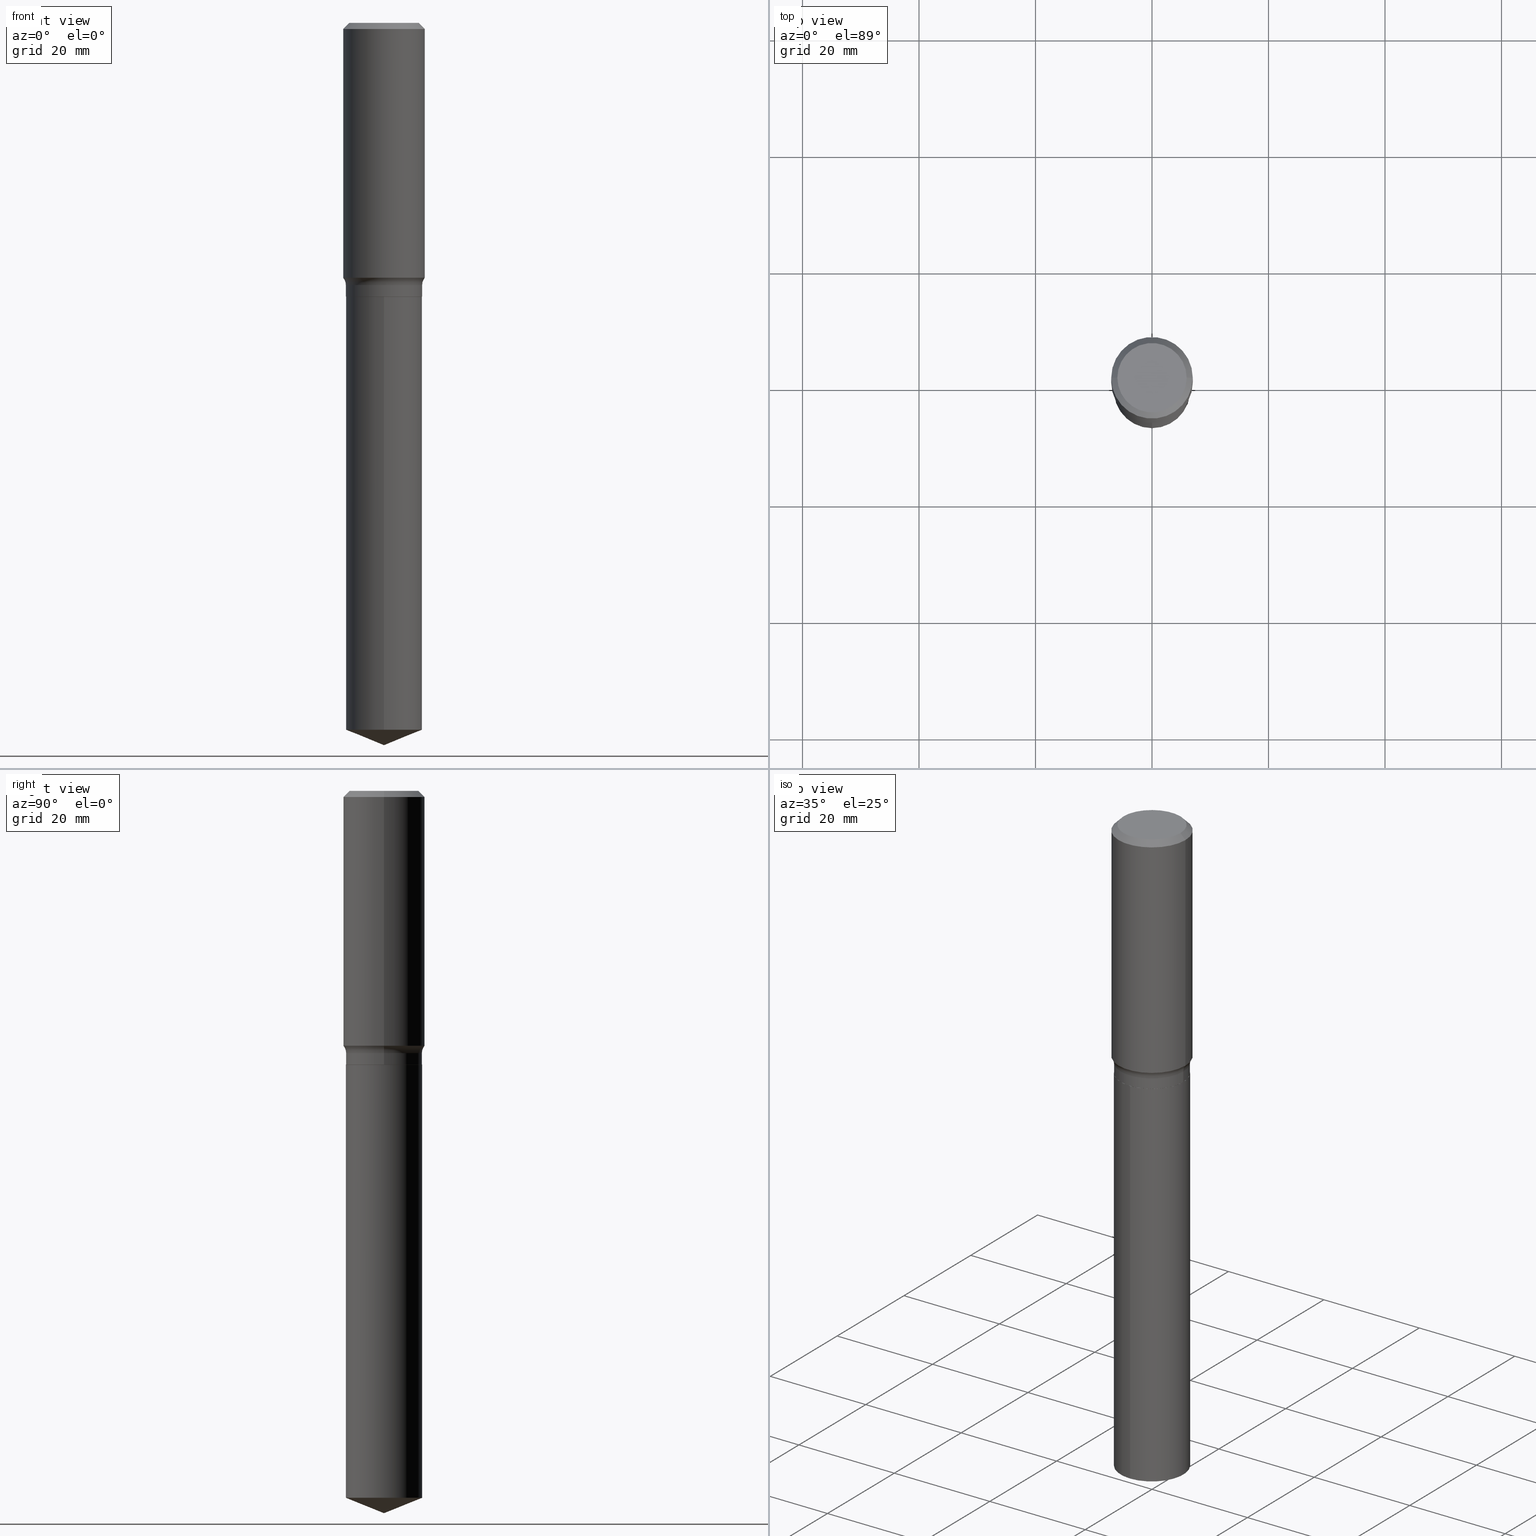
[diagram: canonical four-view strip — front | top / right | iso, engineering-drawing reading convention]
A machine part, canonical four-view strip (front | top / right | iso — engineering-drawing reading convention). The complete STEP part file that produces these views, byte-faithful:
ISO-10303-21;
HEADER;
FILE_DESCRIPTION (( 'STEP AP203' ),
    '1' );
FILE_NAME ('56865.STEP',
    '2024-04-19T14:35:14',
    ( '' ),
    ( '' ),
    'SwSTEP 2.0',
    'SolidWorks 2023',
    '' );
FILE_SCHEMA (( 'CONFIG_CONTROL_DESIGN' ));
ENDSEC;

DATA;
#1 = ORIENTED_EDGE ( 'NONE', *, *, #437, .F. ) ;
#2 = APPROVAL_STATUS ( 'not_yet_approved' ) ;
#3 = VECTOR ( 'NONE', #61, 39.37007874015748854 ) ;
#4 = APPROVAL_PERSON_ORGANIZATION ( #231, #99, #308 ) ;
#5 = DIRECTION ( 'NONE',  ( 1.000000000000000000, -6.982962677686267499E-15, 4.876157962347795834E-29 ) ) ;
#6 = EDGE_LOOP ( 'NONE', ( #457, #146 ) ) ;
#7 = ORIENTED_EDGE ( 'NONE', *, *, #375, .T. ) ;
#8 = PERSON_AND_ORGANIZATION_ROLE ( 'classification_officer' ) ;
#9 = EDGE_CURVE ( 'NONE', #434, #406, #268, .T. ) ;
#10 = ORIENTED_EDGE ( 'NONE', *, *, #9, .T. ) ;
#11 = DIRECTION ( 'NONE',  ( -2.445542093304783004E-29, 3.491376387516568254E-15, 1.000000000000000000 ) ) ;
#12 = LINE ( 'NONE', #237, #440 ) ;
#13 = EDGE_LOOP ( 'NONE', ( #318, #186, #181, #421 ) ) ;
#14 = AXIS2_PLACEMENT_3D ( 'NONE', #27, #138, #441 ) ;
#15 = AXIS2_PLACEMENT_3D ( 'NONE', #271, #53, #191 ) ;
#16 = SECURITY_CLASSIFICATION_LEVEL ( 'unclassified' ) ;
#17 = CARTESIAN_POINT ( 'NONE',  ( 5.897312994011132876E-29, -4.496242839264289535E-15, -1.850499999999999812 ) ) ;
#18 = EDGE_CURVE ( 'NONE', #303, #448, #95, .T. ) ;
#19 = ADVANCED_FACE ( 'NONE', ( #127 ), #424, .F. ) ;
#20 = FACE_OUTER_BOUND ( 'NONE', #336, .T. ) ;
#21 = DIRECTION ( 'NONE',  ( -2.445468806185136597E-29, 3.491481338843145583E-15, 1.000000000000000000 ) ) ;
#22 = CARTESIAN_POINT ( 'NONE',  ( 4.525340025845595057E-29, -6.460986217529240299E-15, -1.850499999999999812 ) ) ;
#23 = VECTOR ( 'NONE', #107, 39.37007874015748854 ) ;
#24 =( GEOMETRIC_REPRESENTATION_CONTEXT ( 3 ) GLOBAL_UNCERTAINTY_ASSIGNED_CONTEXT ( ( #242 ) ) GLOBAL_UNIT_ASSIGNED_CONTEXT ( ( #114, #256, #118 ) ) REPRESENTATION_CONTEXT ( 'NONE', 'WORKASPACE' ) );
#25 = FACE_OUTER_BOUND ( 'NONE', #6, .T. ) ;
#26 = EDGE_CURVE ( 'NONE', #426, #391, #155, .T. ) ;
#27 = CARTESIAN_POINT ( 'NONE',  ( 4.525340025845594497E-29, -6.460986217529239510E-15, -1.850499999999999590 ) ) ;
#28 = ORIENTED_EDGE ( 'NONE', *, *, #183, .T. ) ;
#29 = DIRECTION ( 'NONE',  ( -2.445542093304783004E-29, 3.491376387516568254E-15, 1.000000000000000000 ) ) ;
#30 = CARTESIAN_POINT ( 'NONE',  ( 0.000000000000000000, 0.000000000000000000, 0.000000000000000000 ) ) ;
#31 = AXIS2_PLACEMENT_3D ( 'NONE', #90, #98, #310 ) ;
#32 = ORIENTED_EDGE ( 'NONE', *, *, #184, .T. ) ;
#33 = CARTESIAN_POINT ( 'NONE',  ( -1.800207778307473807E-15, -0.2578000000000064129, -1.850499999999998924 ) ) ;
#34 = FACE_OUTER_BOUND ( 'NONE', #489, .T. ) ;
#35 = EDGE_CURVE ( 'NONE', #413, #406, #203, .T. ) ;
#36 = ORIENTED_EDGE ( 'NONE', *, *, #133, .F. ) ;
#37 = DIRECTION ( 'NONE',  ( 1.000000000000000000, 0.000000000000000000, 0.000000000000000000 ) ) ;
#38 = ORIENTED_EDGE ( 'NONE', *, *, #229, .F. ) ;
#39 = PERSON_AND_ORGANIZATION ( #79, #137 ) ;
#40 = FACE_OUTER_BOUND ( 'NONE', #381, .T. ) ;
#41 = PERSON_AND_ORGANIZATION_ROLE ( 'creator' ) ;
#42 = CIRCLE ( 'NONE', #82, 0.07800000000000002764 ) ;
#43 = LOCAL_TIME ( 10, 35, 14.00000000000000000, #394 ) ;
#44 = CARTESIAN_POINT ( 'NONE',  ( 4.525340025845594497E-29, -6.460986217529239510E-15, -1.850499999999999590 ) ) ;
#45 = ORIENTED_EDGE ( 'NONE', *, *, #229, .T. ) ;
#46 = CARTESIAN_POINT ( 'NONE',  ( 0.000000000000000000, 0.000000000000000000, 0.000000000000000000 ) ) ;
#47 = EDGE_LOOP ( 'NONE', ( #153, #294, #335, #32 ) ) ;
#48 = EDGE_LOOP ( 'NONE', ( #149, #171, #85, #117 ) ) ;
#49 = CIRCLE ( 'NONE', #263, 0.2756000000000001782 ) ;
#50 = CARTESIAN_POINT ( 'NONE',  ( 0.000000000000000000, 0.000000000000000000, 0.000000000000000000 ) ) ;
#51 = APPROVAL_DATE_TIME ( #320, #84 ) ;
#52 = ORIENTED_EDGE ( 'NONE', *, *, #362, .T. ) ;
#53 = DIRECTION ( 'NONE',  ( -2.445468806185136597E-29, 3.491481338843145583E-15, 1.000000000000000000 ) ) ;
#54 = DIRECTION ( 'NONE',  ( 1.000000000000000000, -6.982962677686267499E-15, 0.000000000000000000 ) ) ;
#55 = DIRECTION ( 'NONE',  ( 1.000000000000000000, -6.982962677686266711E-15, 0.000000000000000000 ) ) ;
#56 = APPROVAL_STATUS ( 'not_yet_approved' ) ;
#57 = EDGE_CURVE ( 'NONE', #406, #267, #93, .T. ) ;
#58 = CARTESIAN_POINT ( 'NONE',  ( 1.193913887793025385E-28, -1.704489952385588330E-14, -4.881999999999999673 ) ) ;
#59 = DIRECTION ( 'NONE',  ( -2.445468806185136597E-29, 3.491481338843145583E-15, 1.000000000000000000 ) ) ;
#60 = AXIS2_PLACEMENT_3D ( 'NONE', #327, #280, #401 ) ;
#61 = DIRECTION ( 'NONE',  ( 0.7071067811868130271, -2.468850131085038979E-15, 0.7071067811862817853 ) ) ;
#62 = CARTESIAN_POINT ( 'NONE',  ( 1.831779172789583451E-15, 0.2577999999999935343, -1.850500000000000700 ) ) ;
#63 = EDGE_CURVE ( 'NONE', #426, #189, #12, .T. ) ;
#64 = CARTESIAN_POINT ( 'NONE',  ( -0.2342600000000000238, 1.707997756148671759E-15, 4.101342130332794026E-18 ) ) ;
#65 = AXIS2_PLACEMENT_3D ( 'NONE', #169, #69, #485 ) ;
#66 = CC_DESIGN_SECURITY_CLASSIFICATION ( #204, ( #470 ) ) ;
#67 = DIRECTION ( 'NONE',  ( 7.105427357601001859E-15, 1.000000000000000000, -3.491481338843145583E-15 ) ) ;
#68 = ADVANCED_FACE ( 'NONE', ( #323 ), #475, .T. ) ;
#69 = DIRECTION ( 'NONE',  ( -2.445468806185136597E-29, 3.491481338843145583E-15, 1.000000000000000000 ) ) ;
#70 = EDGE_LOOP ( 'NONE', ( #225, #227, #38, #305 ) ) ;
#71 = ORIENTED_EDGE ( 'NONE', *, *, #384, .T. ) ;
#72 = CARTESIAN_POINT ( 'NONE',  ( -8.434218389407981098E-28, 1.204106695517681552E-13, 34.48807874015748354 ) ) ;
#73 = AXIS2_PLACEMENT_3D ( 'NONE', #374, #241, #287 ) ;
#74 = EDGE_LOOP ( 'NONE', ( #409, #113, #177, #222 ) ) ;
#75 = AXIS2_PLACEMENT_3D ( 'NONE', #46, #185, #37 ) ;
#76 = ORIENTED_EDGE ( 'NONE', *, *, #154, .T. ) ;
#77 = ADVANCED_FACE ( 'NONE', ( #192 ), #276, .T. ) ;
#78 = ORIENTED_EDGE ( 'NONE', *, *, #375, .F. ) ;
#80 = DIRECTION ( 'NONE',  ( -6.982962677686265922E-15, -1.000000000000000000, 3.498761904101829135E-15 ) ) ;
#79 = PERSON ( 'UNSPECIFIED', 'UNSPECIFIED', 'UNSPECIFIED', ('UNSPECIFIED'), ('UNSPECIFIED'), ('UNSPECIFIED') ) ;
#81 = EDGE_CURVE ( 'NONE', #343, #303, #278, .T. ) ;
#82 = AXIS2_PLACEMENT_3D ( 'NONE', #329, #67, #208 ) ;
#83 = CC_DESIGN_APPROVAL ( #84, ( #204 ) ) ;
#84 = APPROVAL ( #433, 'UNSPECIFIED' ) ;
#85 = ORIENTED_EDGE ( 'NONE', *, *, #432, .T. ) ;
#86 = VECTOR ( 'NONE', #472, 39.37007874015748854 ) ;
#87 = VECTOR ( 'NONE', #438, 39.37007874015748143 ) ;
#88 = CARTESIAN_POINT ( 'NONE',  ( 0.2572999999999999732, -8.257702514497915670E-15, -1.850499999999999590 ) ) ;
#89 = LOCAL_TIME ( 10, 35, 14.00000000000000000, #128 ) ;
#90 = CARTESIAN_POINT ( 'NONE',  ( 4.525340025845594497E-29, -6.460986217529239510E-15, -1.850499999999999590 ) ) ;
#91 = DIRECTION ( 'NONE',  ( -2.445542093304783004E-29, 3.491376387516568254E-15, 1.000000000000000000 ) ) ;
#92 = CARTESIAN_POINT ( 'NONE',  ( 0.2577999999999999736, -8.259448255167337962E-15, -1.849999999999999867 ) ) ;
#93 = LINE ( 'NONE', #130, #218 ) ;
#94 = CARTESIAN_POINT ( 'NONE',  ( 1.168427820367109338E-28, -1.668143909060755790E-14, -4.777842038979696504 ) ) ;
#95 = LINE ( 'NONE', #427, #364 ) ;
#96 = DIRECTION ( 'NONE',  ( -2.445468806185136597E-29, 3.491481338843145583E-15, 1.000000000000000000 ) ) ;
#97 = AXIS2_PLACEMENT_3D ( 'NONE', #314, #91, #386 ) ;
#98 = DIRECTION ( 'NONE',  ( -2.445468806185136597E-29, 3.491481338843145583E-15, 1.000000000000000000 ) ) ;
#99 = APPROVAL ( #56, 'UNSPECIFIED' ) ;
#100 = LINE ( 'NONE', #176, #286 ) ;
#101 = EDGE_CURVE ( 'NONE', #368, #343, #353, .T. ) ;
#102 = DIRECTION ( 'NONE',  ( -2.445468806185136597E-29, 3.491481338843145583E-15, 1.000000000000000000 ) ) ;
#103 = CARTESIAN_POINT ( 'NONE',  ( -0.2577999999999999736, -4.492515550323992167E-15, -1.772699999999999276 ) ) ;
#104 = AXIS2_PLACEMENT_3D ( 'NONE', #22, #244, #367 ) ;
#105 = AXIS2_PLACEMENT_3D ( 'NONE', #175, #400, #361 ) ;
#106 = DIRECTION ( 'NONE',  ( 1.000000000000000000, -6.982962677686265922E-15, 0.000000000000000000 ) ) ;
#107 = DIRECTION ( 'NONE',  ( -6.474490251793178629E-15, -0.9271838545667864251, 0.3746065934159145683 ) ) ;
#108 = ORIENTED_EDGE ( 'NONE', *, *, #392, .T. ) ;
#109 = ORIENTED_EDGE ( 'NONE', *, *, #246, .T. ) ;
#110 = CARTESIAN_POINT ( 'NONE',  ( 0.2577999999999999736, -7.989556747674761677E-15, -1.772699999999999276 ) ) ;
#111 = EDGE_CURVE ( 'NONE', #209, #189, #194, .T. ) ;
#112 = DIRECTION ( 'NONE',  ( -6.982962677686265922E-15, -1.000000000000000000, 3.179031800229941890E-15 ) ) ;
#113 = ORIENTED_EDGE ( 'NONE', *, *, #295, .T. ) ;
#114 =( CONVERSION_BASED_UNIT ( 'INCH', #259 ) LENGTH_UNIT ( ) NAMED_UNIT ( #417 ) );
#115 = DIRECTION ( 'NONE',  ( -2.445468806185136597E-29, 3.491481338843145583E-15, 1.000000000000000000 ) ) ;
#116 = VERTEX_POINT ( 'NONE', #321 ) ;
#117 = ORIENTED_EDGE ( 'NONE', *, *, #26, .F. ) ;
#118 =( NAMED_UNIT ( * ) SI_UNIT ( $, .STERADIAN. ) SOLID_ANGLE_UNIT ( ) );
#119 = DATE_AND_TIME ( #456, #156 ) ;
#120 = EDGE_CURVE ( 'NONE', #252, #413, #399, .T. ) ;
#121 = ADVANCED_FACE ( 'NONE', ( #233 ), #360, .T. ) ;
#122 = DIRECTION ( 'NONE',  ( 1.000000000000000000, -6.982962677686266711E-15, 0.000000000000000000 ) ) ;
#123 = CONICAL_SURFACE ( 'NONE', #397, 97.44436430772837809, 1.186823891356144856 ) ;
#124 = ADVANCED_FACE ( 'NONE', ( #20 ), #412, .T. ) ;
#125 = CC_DESIGN_APPROVAL ( #473, ( #411 ) ) ;
#126 = ORIENTED_EDGE ( 'NONE', *, *, #63, .F. ) ;
#127 = FACE_OUTER_BOUND ( 'NONE', #250, .T. ) ;
#128 = COORDINATED_UNIVERSAL_TIME_OFFSET ( 5, 0, .BEHIND. ) ;
#129 = AXIS2_PLACEMENT_3D ( 'NONE', #350, #11, #159 ) ;
#130 = CARTESIAN_POINT ( 'NONE',  ( -0.2577999999999999736, 1.831779172789538092E-15, -1.268101466267714686E-29 ) ) ;
#131 = DIRECTION ( 'NONE',  ( 1.000000000000000000, -6.982962677686265922E-15, 4.876176775795935793E-29 ) ) ;
#132 = FACE_OUTER_BOUND ( 'NONE', #254, .T. ) ;
#133 = EDGE_CURVE ( 'NONE', #368, #303, #447, .T. ) ;
#134 = CARTESIAN_POINT ( 'NONE',  ( -0.2572999999999999732, -4.632759758418501922E-15, -1.850499999999999590 ) ) ;
#135 = DIRECTION ( 'NONE',  ( -2.445542093304783004E-29, 3.491376387516568254E-15, 1.000000000000000000 ) ) ;
#136 = DIRECTION ( 'NONE',  ( 1.000000000000000000, -6.982962677686264344E-15, 4.883557194083111219E-29 ) ) ;
#137 = ORGANIZATION ( 'UNSPECIFIED', 'UNSPECIFIED', '' ) ;
#138 = DIRECTION ( 'NONE',  ( -2.445468806185136597E-29, 3.491481338843145583E-15, 1.000000000000000000 ) ) ;
#139 = CARTESIAN_POINT ( 'NONE',  ( 4.525340025845595057E-29, -6.460986217529240299E-15, -1.850499999999999812 ) ) ;
#140 = DESIGN_CONTEXT ( 'detailed design', #217, 'design' ) ;
#141 = DIRECTION ( 'NONE',  ( -2.445468806185136877E-29, 3.491481338843145188E-15, 1.000000000000000000 ) ) ;
#142 = CIRCLE ( 'NONE', #14, 0.2572999999999999732 ) ;
#143 = AXIS2_PLACEMENT_3D ( 'NONE', #333, #274, #106 ) ;
#144 = DIRECTION ( 'NONE',  ( 1.000000000000000000, -6.982962677686267499E-15, 4.876157962347795834E-29 ) ) ;
#145 = CARTESIAN_POINT ( 'NONE',  ( 4.335082552724389788E-29, -6.189348969367241722E-15, -1.772699999999999276 ) ) ;
#146 = ORIENTED_EDGE ( 'NONE', *, *, #477, .T. ) ;
#147 = FACE_OUTER_BOUND ( 'NONE', #292, .T. ) ;
#148 = EDGE_LOOP ( 'NONE', ( #264, #371, #251, #206 ) ) ;
#149 = ORIENTED_EDGE ( 'NONE', *, *, #392, .F. ) ;
#150 = APPROVAL_ROLE ( '' ) ;
#151 = CONICAL_SURFACE ( 'NONE', #279, 0.2572999999999999732, 0.7853981633978239785 ) ;
#152 = ADVANCED_FACE ( 'NONE', ( #483 ), #388, .T. ) ;
#153 = ORIENTED_EDGE ( 'NONE', *, *, #111, .F. ) ;
#154 = EDGE_CURVE ( 'NONE', #252, #434, #142, .T. ) ;
#155 = CIRCLE ( 'NONE', #201, 0.07800000000000002764 ) ;
#156 = LOCAL_TIME ( 10, 35, 14.00000000000000000, #300 ) ;
#157 = ORIENTED_EDGE ( 'NONE', *, *, #133, .T. ) ;
#158 = SHAPE_DEFINITION_REPRESENTATION ( #480, #265 ) ;
#159 = DIRECTION ( 'NONE',  ( -6.982962677686265922E-15, -1.000000000000000000, 4.238709066973255853E-15 ) ) ;
#160 = CARTESIAN_POINT ( 'NONE',  ( 1.010956804476942048E-30, -1.443378385477765563E-16, -0.04134000000000026542 ) ) ;
#161 = AXIS2_PLACEMENT_3D ( 'NONE', #50, #395, #190 ) ;
#162 = ORIENTED_EDGE ( 'NONE', *, *, #35, .F. ) ;
#163 = AXIS2_PLACEMENT_3D ( 'NONE', #94, #474, #358 ) ;
#164 = APPROVAL_ROLE ( '' ) ;
#165 = DIRECTION ( 'NONE',  ( 0.7071067811865452413, -7.319954787623248157E-15, -0.7071067811865497932 ) ) ;
#166 = EDGE_CURVE ( 'NONE', #413, #391, #100, .T. ) ;
#167 = FACE_OUTER_BOUND ( 'NONE', #48, .T. ) ;
#168 = CIRCLE ( 'NONE', #163, 0.2577999999999999736 ) ;
#169 = CARTESIAN_POINT ( 'NONE',  ( 4.335082552724389788E-29, -6.189348969367241722E-15, -1.772699999999999276 ) ) ;
#170 = CARTESIAN_POINT ( 'NONE',  ( -1.800207778307402810E-15, -0.2578000000000167380, -4.777842038979694728 ) ) ;
#171 = ORIENTED_EDGE ( 'NONE', *, *, #199, .T. ) ;
#172 = FACE_OUTER_BOUND ( 'NONE', #148, .T. ) ;
#173 = DIRECTION ( 'NONE',  ( 1.000000000000000000, -6.982962677686267499E-15, 4.876176775795935793E-29 ) ) ;
#174 = CIRCLE ( 'NONE', #73, 0.2756000000000000116 ) ;
#175 = CARTESIAN_POINT ( 'NONE',  ( 4.524117291442502256E-29, -6.459240476859818795E-15, -1.849999999999999867 ) ) ;
#176 = CARTESIAN_POINT ( 'NONE',  ( 0.2577999999999999736, -1.800207778307519561E-15, 1.257078372800192065E-29 ) ) ;
#177 = ORIENTED_EDGE ( 'NONE', *, *, #246, .F. ) ;
#178 = ORIENTED_EDGE ( 'NONE', *, *, #63, .T. ) ;
#179 = APPLICATION_PROTOCOL_DEFINITION ( 'international standard', 'config_control_design', 1994, #217 ) ;
#180 = AXIS2_PLACEMENT_3D ( 'NONE', #30, #102, #173 ) ;
#181 = ORIENTED_EDGE ( 'NONE', *, *, #166, .T. ) ;
#182 = CARTESIAN_POINT ( 'NONE',  ( -1.002970424325033577E-46, 1.431975951230896486E-32, 4.101342130344485961E-18 ) ) ;
#183 = EDGE_CURVE ( 'NONE', #116, #448, #365, .T. ) ;
#184 = EDGE_CURVE ( 'NONE', #492, #189, #174, .T. ) ;
#185 = DIRECTION ( 'NONE',  ( 0.000000000000000000, 0.000000000000000000, 1.000000000000000000 ) ) ;
#186 = ORIENTED_EDGE ( 'NONE', *, *, #458, .T. ) ;
#187 = DATE_AND_TIME ( #312, #43 ) ;
#188 = AXIS2_PLACEMENT_3D ( 'NONE', #193, #59, #144 ) ;
#189 = VERTEX_POINT ( 'NONE', #247 ) ;
#190 = DIRECTION ( 'NONE',  ( 1.000000000000000000, -6.982962677686267499E-15, 4.876176775795935793E-29 ) ) ;
#191 = DIRECTION ( 'NONE',  ( 1.000000000000000000, -6.982962677686267499E-15, 4.876176775795935793E-29 ) ) ;
#192 = FACE_OUTER_BOUND ( 'NONE', #13, .T. ) ;
#193 = CARTESIAN_POINT ( 'NONE',  ( -1.002970424325033577E-46, 1.431975951230896486E-32, 4.101342130344485961E-18 ) ) ;
#194 = LINE ( 'NONE', #466, #219 ) ;
#195 = ADVANCED_FACE ( 'NONE', ( #34 ), #373, .F. ) ;
#196 = PERSON_AND_ORGANIZATION_ROLE ( 'design_supplier' ) ;
#197 = DIRECTION ( 'NONE',  ( -6.982962677686266711E-15, -1.000000000000000000, 3.491481338843145583E-15 ) ) ;
#198 = DIRECTION ( 'NONE',  ( -6.982962677686265922E-15, -1.000000000000000000, 3.498761904101829135E-15 ) ) ;
#199 = EDGE_CURVE ( 'NONE', #339, #267, #42, .T. ) ;
#200 = FACE_OUTER_BOUND ( 'NONE', #415, .T. ) ;
#201 = AXIS2_PLACEMENT_3D ( 'NONE', #478, #197, #352 ) ;
#202 = DIRECTION ( 'NONE',  ( -2.445542093304782724E-29, 3.491376387516568254E-15, 1.000000000000000000 ) ) ;
#203 = CIRCLE ( 'NONE', #298, 0.2577999999999999736 ) ;
#204 = SECURITY_CLASSIFICATION ( '', '', #16 ) ;
#205 = DIRECTION ( 'NONE',  ( -2.445542093304783004E-29, 3.491376387516568254E-15, 1.000000000000000000 ) ) ;
#206 = ORIENTED_EDGE ( 'NONE', *, *, #183, .F. ) ;
#207 = CARTESIAN_POINT ( 'NONE',  ( -0.2756000000000001227, 1.958255779754836984E-15, -1.355658510874252567E-29 ) ) ;
#208 = DIRECTION ( 'NONE',  ( -1.000000000000000000, 7.105427357601001859E-15, 0.000000000000000000 ) ) ;
#209 = VERTEX_POINT ( 'NONE', #484 ) ;
#210 = CC_DESIGN_PERSON_AND_ORGANIZATION_ASSIGNMENT ( #39, #377, ( #301 ) ) ;
#211 = DIRECTION ( 'NONE',  ( -2.445468806185136597E-29, 3.491481338843145583E-15, 1.000000000000000000 ) ) ;
#212 = ORIENTED_EDGE ( 'NONE', *, *, #184, .F. ) ;
#213 = ADVANCED_FACE ( 'NONE', ( #370 ), #338, .T. ) ;
#214 = MECHANICAL_CONTEXT ( 'NONE', #281, 'mechanical' ) ;
#215 = APPROVAL_DATE_TIME ( #119, #473 ) ;
#216 = DIRECTION ( 'NONE',  ( -2.445542093304783004E-29, 3.491376387516568254E-15, 1.000000000000000000 ) ) ;
#217 = APPLICATION_CONTEXT ( 'configuration controlled 3d designs of mechanical parts and assemblies' ) ;
#218 = VECTOR ( 'NONE', #357, 39.37007874015748143 ) ;
#219 = VECTOR ( 'NONE', #165, 39.37007874015748143 ) ;
#220 = DIRECTION ( 'NONE',  ( -2.445468806185136597E-29, 3.491481338843145583E-15, 1.000000000000000000 ) ) ;
#221 = AXIS2_PLACEMENT_3D ( 'NONE', #72, #135, #198 ) ;
#222 = ORIENTED_EDGE ( 'NONE', *, *, #18, .F. ) ;
#223 = CARTESIAN_POINT ( 'NONE',  ( -0.2756000000000000116, -1.122002406709343696E-15, -0.04134000000000026542 ) ) ;
#224 = ORIENTED_EDGE ( 'NONE', *, *, #199, .F. ) ;
#225 = ORIENTED_EDGE ( 'NONE', *, *, #35, .T. ) ;
#226 = DATE_AND_TIME ( #275, #89 ) ;
#227 = ORIENTED_EDGE ( 'NONE', *, *, #57, .T. ) ;
#228 = DIRECTION ( 'NONE',  ( -2.445468806185136877E-29, 3.491481338843145188E-15, 1.000000000000000000 ) ) ;
#229 = EDGE_CURVE ( 'NONE', #391, #267, #355, .T. ) ;
#230 = CLOSED_SHELL ( 'NONE', ( #416, #124, #464, #277, #121, #77, #195, #213, #152, #291, #19, #468 ) ) ;
#231 = PERSON_AND_ORGANIZATION ( #79, #137 ) ;
#232 = AXIS2_PLACEMENT_3D ( 'NONE', #160, #430, #393 ) ;
#233 = FACE_OUTER_BOUND ( 'NONE', #70, .T. ) ;
#234 = PERSON_AND_ORGANIZATION ( #79, #137 ) ;
#235 = DIRECTION ( 'NONE',  ( -2.438088387897960049E-29, 3.491481338843145188E-15, 1.000000000000000000 ) ) ;
#236 = DIRECTION ( 'NONE',  ( -2.445468806185136877E-29, 3.491481338843145188E-15, 1.000000000000000000 ) ) ;
#237 = CARTESIAN_POINT ( 'NONE',  ( 0.2756000000000001227, -1.924504513970336137E-15, 1.343874319409360548E-29 ) ) ;
#238 = CIRCLE ( 'NONE', #31, 0.2572999999999999732 ) ;
#239 = DIRECTION ( 'NONE',  ( -2.445542093304782724E-29, 3.491376387516568254E-15, 1.000000000000000000 ) ) ;
#240 = DIRECTION ( 'NONE',  ( 1.000000000000000000, -6.982962677686267499E-15, 0.000000000000000000 ) ) ;
#241 = DIRECTION ( 'NONE',  ( -2.445468806185136597E-29, 3.491481338843145583E-15, 1.000000000000000000 ) ) ;
#242 = UNCERTAINTY_MEASURE_WITH_UNIT (LENGTH_MEASURE( 1.000000000000000082E-05 ), #114, 'distance_accuracy_value', 'NONE');
#243 = DIRECTION ( 'NONE',  ( 2.445468806185136597E-29, -3.491481338843145583E-15, -1.000000000000000000 ) ) ;
#244 = DIRECTION ( 'NONE',  ( 2.445542093304782724E-29, -3.491376387516568254E-15, -1.000000000000000000 ) ) ;
#245 = AXIS2_PLACEMENT_3D ( 'NONE', #319, #487, #240 ) ;
#246 = EDGE_CURVE ( 'NONE', #448, #116, #316, .T. ) ;
#247 = CARTESIAN_POINT ( 'NONE',  ( 0.2756000000000000116, -2.068842352518111732E-15, -0.04134000000000026542 ) ) ;
#248 = ORIENTED_EDGE ( 'NONE', *, *, #120, .T. ) ;
#249 = PRODUCT_RELATED_PRODUCT_CATEGORY ( 'detail', '', ( #301 ) ) ;
#250 = EDGE_LOOP ( 'NONE', ( #349, #78 ) ) ;
#251 = ORIENTED_EDGE ( 'NONE', *, *, #18, .T. ) ;
#252 = VERTEX_POINT ( 'NONE', #408 ) ;
#253 = DIRECTION ( 'NONE',  ( 1.000000000000000000, -6.982962677686267499E-15, 0.000000000000000000 ) ) ;
#254 = EDGE_LOOP ( 'NONE', ( #297, #157, #460 ) ) ;
#255 = ORIENTED_EDGE ( 'NONE', *, *, #429, .T. ) ;
#256 =( NAMED_UNIT ( * ) PLANE_ANGLE_UNIT ( ) SI_UNIT ( $, .RADIAN. ) );
#257 = DIRECTION ( 'NONE',  ( -2.445468806185136597E-29, 3.491481338843145583E-15, 1.000000000000000000 ) ) ;
#258 = MANIFOLD_SOLID_BREP ( 'Body-Move/Copy2[1]', #418 ) ;
#259 = LENGTH_MEASURE_WITH_UNIT ( LENGTH_MEASURE( 0.02539999999999999897 ), #302 );
#260 = CARTESIAN_POINT ( 'NONE',  ( 1.831779172789655238E-15, 0.2577999999999833203, -4.777842038979697392 ) ) ;
#261 = ORIENTED_EDGE ( 'NONE', *, *, #26, .T. ) ;
#262 = AXIS2_PLACEMENT_3D ( 'NONE', #402, #211, #136 ) ;
#263 = AXIS2_PLACEMENT_3D ( 'NONE', #442, #449, #431 ) ;
#264 = ORIENTED_EDGE ( 'NONE', *, *, #295, .F. ) ;
#265 = ADVANCED_BREP_SHAPE_REPRESENTATION ( '56865', ( #258, #425, #75 ), #24 ) ;
#266 = PERSON_AND_ORGANIZATION ( #79, #137 ) ;
#267 = VERTEX_POINT ( 'NONE', #103 ) ;
#268 = LINE ( 'NONE', #134, #86 ) ;
#269 = AXIS2_PLACEMENT_3D ( 'NONE', #444, #488, #112 ) ;
#270 = LOCAL_TIME ( 10, 35, 14.00000000000000000, #348 ) ;
#271 = CARTESIAN_POINT ( 'NONE',  ( 0.000000000000000000, 0.000000000000000000, 0.000000000000000000 ) ) ;
#272 = PERSON_AND_ORGANIZATION ( #79, #137 ) ;
#273 = CARTESIAN_POINT ( 'NONE',  ( 4.524117291442502256E-29, -6.459240476859818795E-15, -1.849999999999999867 ) ) ;
#274 = DIRECTION ( 'NONE',  ( -2.445468806185136597E-29, 3.491481338843145583E-15, 1.000000000000000000 ) ) ;
#275 = CALENDAR_DATE ( 2024, 19, 4 ) ;
#276 = CYLINDRICAL_SURFACE ( 'NONE', #161, 0.2577999999999999736 ) ;
#277 = ADVANCED_FACE ( 'NONE', ( #167 ), #486, .F. ) ;
#278 = CIRCLE ( 'NONE', #129, 0.2577999999999999736 ) ;
#279 = AXIS2_PLACEMENT_3D ( 'NONE', #476, #96, #55 ) ;
#280 = DIRECTION ( 'NONE',  ( 2.438088387897960049E-29, -3.491481338843145188E-15, -1.000000000000000000 ) ) ;
#281 = APPLICATION_CONTEXT ( 'configuration controlled 3d designs of mechanical parts and assemblies' ) ;
#282 = CYLINDRICAL_SURFACE ( 'NONE', #389, 0.2577999999999999736 ) ;
#283 = CC_DESIGN_PERSON_AND_ORGANIZATION_ASSIGNMENT ( #471, #8, ( #204 ) ) ;
#284 = DIRECTION ( 'NONE',  ( -2.445468806185136597E-29, 3.491481338843145583E-15, 1.000000000000000000 ) ) ;
#285 = LINE ( 'NONE', #62, #469 ) ;
#286 = VECTOR ( 'NONE', #141, 39.37007874015748143 ) ;
#287 = DIRECTION ( 'NONE',  ( 1.000000000000000000, -6.982962677686267499E-15, 0.000000000000000000 ) ) ;
#288 = CIRCLE ( 'NONE', #317, 0.2342600000000000238 ) ;
#289 = CIRCLE ( 'NONE', #245, 0.2577999999999999736 ) ;
#290 = VERTEX_POINT ( 'NONE', #64 ) ;
#291 = ADVANCED_FACE ( 'NONE', ( #25 ), #443, .F. ) ;
#292 = EDGE_LOOP ( 'NONE', ( #419, #7, #248, #345 ) ) ;
#293 = DIRECTION ( 'NONE',  ( 1.000000000000000000, -6.982962677686267499E-15, 0.000000000000000000 ) ) ;
#294 = ORIENTED_EDGE ( 'NONE', *, *, #379, .F. ) ;
#295 = EDGE_CURVE ( 'NONE', #343, #116, #285, .T. ) ;
#296 = ADVANCED_FACE ( 'NONE', ( #200 ), #363, .F. ) ;
#297 = ORIENTED_EDGE ( 'NONE', *, *, #101, .F. ) ;
#298 = AXIS2_PLACEMENT_3D ( 'NONE', #273, #313, #54 ) ;
#299 = CIRCLE ( 'NONE', #143, 0.2756000000000001782 ) ;
#300 = COORDINATED_UNIVERSAL_TIME_OFFSET ( 5, 0, .BEHIND. ) ;
#301 = PRODUCT ( '56865', '56865', '', ( #214 ) ) ;
#302 =( LENGTH_UNIT ( ) NAMED_UNIT ( * ) SI_UNIT ( $, .METRE. ) );
#303 = VERTEX_POINT ( 'NONE', #170 ) ;
#304 = CARTESIAN_POINT ( 'NONE',  ( -0.2756000000000000116, 1.780166675422558965E-15, -0.04134000000000026542 ) ) ;
#305 = ORIENTED_EDGE ( 'NONE', *, *, #166, .F. ) ;
#306 = EDGE_CURVE ( 'NONE', #290, #492, #330, .T. ) ;
#307 = CIRCLE ( 'NONE', #188, 0.2342600000000000238 ) ;
#308 = APPROVAL_ROLE ( '' ) ;
#309 = EDGE_LOOP ( 'NONE', ( #76, #10, #162, #455 ) ) ;
#310 = DIRECTION ( 'NONE',  ( 1.000000000000000000, -6.982962677686266711E-15, 0.000000000000000000 ) ) ;
#311 = CARTESIAN_POINT ( 'NONE',  ( 1.193913649951395081E-28, -1.704489952385588330E-14, -4.881999999999999673 ) ) ;
#312 = CALENDAR_DATE ( 2024, 19, 4 ) ;
#313 = DIRECTION ( 'NONE',  ( -2.445468806185136597E-29, 3.491481338843145583E-15, 1.000000000000000000 ) ) ;
#314 = CARTESIAN_POINT ( 'NONE',  ( 4.525340025845595057E-29, -6.460986217529240299E-15, -1.850499999999999812 ) ) ;
#315 = DATE_TIME_ROLE ( 'creation_date' ) ;
#316 = CIRCLE ( 'NONE', #420, 0.2577999999999999736 ) ;
#317 = AXIS2_PLACEMENT_3D ( 'NONE', #182, #257, #5 ) ;
#318 = ORIENTED_EDGE ( 'NONE', *, *, #57, .F. ) ;
#319 = CARTESIAN_POINT ( 'NONE',  ( 4.335082552724389788E-29, -6.189348969367241722E-15, -1.772699999999999276 ) ) ;
#320 = DATE_AND_TIME ( #422, #270 ) ;
#321 = CARTESIAN_POINT ( 'NONE',  ( 1.831779172789655238E-15, 0.2577999999999934788, -1.850500000000000700 ) ) ;
#322 = LINE ( 'NONE', #207, #481 ) ;
#323 = FACE_OUTER_BOUND ( 'NONE', #74, .T. ) ;
#324 = CYLINDRICAL_SURFACE ( 'NONE', #326, 0.2756000000000001227 ) ;
#325 = CONICAL_SURFACE ( 'NONE', #221, 97.44436430772837809, 1.186823891356144856 ) ;
#326 = AXIS2_PLACEMENT_3D ( 'NONE', #490, #21, #479 ) ;
#327 = CARTESIAN_POINT ( 'NONE',  ( -5.014852121625167883E-47, 7.159879756154482429E-33, 2.050671065172242981E-18 ) ) ;
#328 = ADVANCED_FACE ( 'NONE', ( #40 ), #123, .T. ) ;
#329 = CARTESIAN_POINT ( 'NONE',  ( -0.3357999999999999319, -3.803346462684825387E-15, -1.772699999999999276 ) ) ;
#330 = LINE ( 'NONE', #304, #346 ) ;
#331 = ORIENTED_EDGE ( 'NONE', *, *, #384, .F. ) ;
#332 = ORIENTED_EDGE ( 'NONE', *, *, #477, .F. ) ;
#333 = CARTESIAN_POINT ( 'NONE',  ( 4.213792230418472128E-29, -6.016178534380584976E-15, -1.723102016170008355 ) ) ;
#334 = CIRCLE ( 'NONE', #461, 0.2756000000000000116 ) ;
#335 = ORIENTED_EDGE ( 'NONE', *, *, #306, .T. ) ;
#336 = EDGE_LOOP ( 'NONE', ( #332, #383, #52, #410 ) ) ;
#337 = FACE_OUTER_BOUND ( 'NONE', #423, .T. ) ;
#338 = CYLINDRICAL_SURFACE ( 'NONE', #180, 0.2756000000000001227 ) ;
#339 = VERTEX_POINT ( 'NONE', #380 ) ;
#340 = APPLICATION_PROTOCOL_DEFINITION ( 'international standard', 'config_control_design', 1994, #281 ) ;
#341 = PERSON_AND_ORGANIZATION ( #79, #137 ) ;
#342 = CARTESIAN_POINT ( 'NONE',  ( -8.434218389407981098E-28, 1.204106695517681552E-13, 34.48807874015748354 ) ) ;
#343 = VERTEX_POINT ( 'NONE', #260 ) ;
#344 = CC_DESIGN_DATE_AND_TIME_ASSIGNMENT ( #351, #463, ( #204 ) ) ;
#345 = ORIENTED_EDGE ( 'NONE', *, *, #458, .F. ) ;
#346 = VECTOR ( 'NONE', #459, 39.37007874015748143 ) ;
#347 = CONICAL_SURFACE ( 'NONE', #454, 0.2572999999999999732, 0.7853981633978239785 ) ;
#348 = COORDINATED_UNIVERSAL_TIME_OFFSET ( 5, 0, .BEHIND. ) ;
#349 = ORIENTED_EDGE ( 'NONE', *, *, #154, .F. ) ;
#350 = CARTESIAN_POINT ( 'NONE',  ( 1.168427820367109338E-28, -1.668143909060755790E-14, -4.777842038979696504 ) ) ;
#351 = DATE_AND_TIME ( #390, #403 ) ;
#352 = DIRECTION ( 'NONE',  ( 1.000000000000000000, -6.982962677686255667E-15, 0.000000000000000000 ) ) ;
#353 = LINE ( 'NONE', #58, #87 ) ;
#354 = DIRECTION ( 'NONE',  ( -6.982962677686265922E-15, -1.000000000000000000, 3.179031800229941890E-15 ) ) ;
#355 = CIRCLE ( 'NONE', #445, 0.2577999999999999736 ) ;
#356 = PERSON_AND_ORGANIZATION_ROLE ( 'creator' ) ;
#357 = DIRECTION ( 'NONE',  ( -2.445468806185136877E-29, 3.491481338843145188E-15, 1.000000000000000000 ) ) ;
#358 = DIRECTION ( 'NONE',  ( -6.982962677686265922E-15, -1.000000000000000000, 4.238709066973255853E-15 ) ) ;
#359 = COORDINATED_UNIVERSAL_TIME_OFFSET ( 5, 0, .BEHIND. ) ;
#360 = CYLINDRICAL_SURFACE ( 'NONE', #15, 0.2577999999999999736 ) ;
#361 = DIRECTION ( 'NONE',  ( 1.000000000000000000, -6.982962677686267499E-15, 0.000000000000000000 ) ) ;
#362 = EDGE_CURVE ( 'NONE', #189, #492, #334, .T. ) ;
#363 = PLANE ( 'NONE',  #104 ) ;
#364 = VECTOR ( 'NONE', #239, 39.37007874015748143 ) ;
#365 = CIRCLE ( 'NONE', #269, 0.2577999999999999736 ) ;
#366 = DIRECTION ( 'NONE',  ( -1.000000000000000000, 6.982962677686267499E-15, 0.000000000000000000 ) ) ;
#367 = DIRECTION ( 'NONE',  ( 6.982962677686265922E-15, 1.000000000000000000, -3.491376387516568254E-15 ) ) ;
#368 = VERTEX_POINT ( 'NONE', #311 ) ;
#369 = CARTESIAN_POINT ( 'NONE',  ( -0.2577999999999999736, -4.492515550323992167E-15, -1.849999999999999867 ) ) ;
#370 = FACE_OUTER_BOUND ( 'NONE', #385, .T. ) ;
#371 = ORIENTED_EDGE ( 'NONE', *, *, #81, .T. ) ;
#372 = CARTESIAN_POINT ( 'NONE',  ( 0.2756000000000002337, -7.940683048350921508E-15, -1.723102016170008355 ) ) ;
#373 = TOROIDAL_SURFACE ( 'NONE', #65, 0.3357999999999999319, 0.07800000000000001377 ) ;
#374 = CARTESIAN_POINT ( 'NONE',  ( 1.010956804476942048E-30, -1.443378385477765563E-16, -0.04134000000000026542 ) ) ;
#375 = EDGE_CURVE ( 'NONE', #434, #252, #238, .T. ) ;
#376 = CC_DESIGN_PERSON_AND_ORGANIZATION_ASSIGNMENT ( #272, #196, ( #470 ) ) ;
#377 = PERSON_AND_ORGANIZATION_ROLE ( 'design_owner' ) ;
#378 = PERSON_AND_ORGANIZATION ( #79, #137 ) ;
#379 = EDGE_CURVE ( 'NONE', #290, #209, #307, .T. ) ;
#380 = CARTESIAN_POINT ( 'NONE',  ( -0.2756000000000002337, -4.057922754625746809E-15, -1.723102016170008355 ) ) ;
#381 = EDGE_LOOP ( 'NONE', ( #36, #451, #1 ) ) ;
#382 = CC_DESIGN_APPROVAL ( #99, ( #470 ) ) ;
#383 = ORIENTED_EDGE ( 'NONE', *, *, #111, .T. ) ;
#384 = EDGE_CURVE ( 'NONE', #339, #492, #322, .T. ) ;
#385 = EDGE_LOOP ( 'NONE', ( #331, #108, #178, #212 ) ) ;
#386 = DIRECTION ( 'NONE',  ( -6.982962677686265922E-15, -1.000000000000000000, 3.179031800229941890E-15 ) ) ;
#387 = ADVANCED_FACE ( 'NONE', ( #132 ), #325, .T. ) ;
#388 = CONICAL_SURFACE ( 'NONE', #428, 0.2756000000000000116, 0.7853981633974450594 ) ;
#389 = AXIS2_PLACEMENT_3D ( 'NONE', #435, #29, #354 ) ;
#390 = CALENDAR_DATE ( 2024, 19, 4 ) ;
#391 = VERTEX_POINT ( 'NONE', #110 ) ;
#392 = EDGE_CURVE ( 'NONE', #339, #426, #49, .T. ) ;
#393 = DIRECTION ( 'NONE',  ( -1.000000000000000000, 6.982962677686267499E-15, 0.000000000000000000 ) ) ;
#394 = COORDINATED_UNIVERSAL_TIME_OFFSET ( 5, 0, .BEHIND. ) ;
#395 = DIRECTION ( 'NONE',  ( -2.445468806185136597E-29, 3.491481338843145583E-15, 1.000000000000000000 ) ) ;
#396 = AXIS2_PLACEMENT_3D ( 'NONE', #17, #235, #131 ) ;
#397 = AXIS2_PLACEMENT_3D ( 'NONE', #342, #216, #80 ) ;
#398 = APPROVAL_DATE_TIME ( #226, #99 ) ;
#399 = LINE ( 'NONE', #88, #3 ) ;
#400 = DIRECTION ( 'NONE',  ( -2.445468806185136597E-29, 3.491481338843145583E-15, 1.000000000000000000 ) ) ;
#401 = DIRECTION ( 'NONE',  ( -1.000000000000000000, 6.982962677686265922E-15, -4.876176775795935793E-29 ) ) ;
#402 = CARTESIAN_POINT ( 'NONE',  ( 4.335082552724389788E-29, -6.189348969367241722E-15, -1.772699999999999276 ) ) ;
#403 = LOCAL_TIME ( 10, 35, 14.00000000000000000, #359 ) ;
#404 = CARTESIAN_POINT ( 'NONE',  ( 1.193886526388413883E-28, -1.704528794871554680E-14, -4.881999999999999673 ) ) ;
#405 = CARTESIAN_POINT ( 'NONE',  ( 1.010956804476942048E-30, -1.443378385477765563E-16, -0.04134000000000026542 ) ) ;
#406 = VERTEX_POINT ( 'NONE', #369 ) ;
#407 = CARTESIAN_POINT ( 'NONE',  ( -0.2572999999999999732, -4.630110531244390721E-15, -1.850499999999999590 ) ) ;
#408 = CARTESIAN_POINT ( 'NONE',  ( 0.2572999999999999732, -8.257702514497915670E-15, -1.850499999999999590 ) ) ;
#409 = ORIENTED_EDGE ( 'NONE', *, *, #437, .T. ) ;
#410 = ORIENTED_EDGE ( 'NONE', *, *, #306, .F. ) ;
#411 = PRODUCT_DEFINITION ( 'UNKNOWN', '', #470, #140 ) ;
#412 = CONICAL_SURFACE ( 'NONE', #232, 0.2756000000000000116, 0.7853981633974450594 ) ;
#413 = VERTEX_POINT ( 'NONE', #92 ) ;
#414 = ADVANCED_FACE ( 'NONE', ( #172 ), #282, .T. ) ;
#415 = EDGE_LOOP ( 'NONE', ( #109, #28 ) ) ;
#416 = ADVANCED_FACE ( 'NONE', ( #439 ), #151, .T. ) ;
#417 = DIMENSIONAL_EXPONENTS ( 1.000000000000000000, 0.000000000000000000, 0.000000000000000000, 0.000000000000000000, 0.000000000000000000, 0.000000000000000000, 0.000000000000000000 ) ;
#418 = CLOSED_SHELL ( 'NONE', ( #68, #328, #387, #414, #296 ) ) ;
#419 = ORIENTED_EDGE ( 'NONE', *, *, #9, .F. ) ;
#420 = AXIS2_PLACEMENT_3D ( 'NONE', #139, #205, #450 ) ;
#421 = ORIENTED_EDGE ( 'NONE', *, *, #432, .F. ) ;
#422 = CALENDAR_DATE ( 2024, 19, 4 ) ;
#423 = EDGE_LOOP ( 'NONE', ( #255, #71, #453, #126 ) ) ;
#424 = PLANE ( 'NONE',  #396 ) ;
#425 = MANIFOLD_SOLID_BREP ( 'Body-Move/Copy2[2]', #230 ) ;
#426 = VERTEX_POINT ( 'NONE', #372 ) ;
#427 = CARTESIAN_POINT ( 'NONE',  ( -1.800207778307473807E-15, -0.2578000000000064129, -1.850499999999998924 ) ) ;
#428 = AXIS2_PLACEMENT_3D ( 'NONE', #405, #243, #366 ) ;
#429 = EDGE_CURVE ( 'NONE', #426, #339, #299, .T. ) ;
#430 = DIRECTION ( 'NONE',  ( 2.445468806185136597E-29, -3.491481338843145583E-15, -1.000000000000000000 ) ) ;
#431 = DIRECTION ( 'NONE',  ( 1.000000000000000000, -6.982962677686265922E-15, 0.000000000000000000 ) ) ;
#432 = EDGE_CURVE ( 'NONE', #267, #391, #289, .T. ) ;
#433 = APPROVAL_STATUS ( 'not_yet_approved' ) ;
#434 = VERTEX_POINT ( 'NONE', #407 ) ;
#435 = CARTESIAN_POINT ( 'NONE',  ( 4.525340025845595057E-29, -6.460986217529240299E-15, -1.850499999999999812 ) ) ;
#436 = CC_DESIGN_DATE_AND_TIME_ASSIGNMENT ( #187, #315, ( #411 ) ) ;
#437 = EDGE_CURVE ( 'NONE', #303, #343, #168, .T. ) ;
#438 = DIRECTION ( 'NONE',  ( 6.588037525764791291E-15, 0.9271838545667889786, 0.3746065934159081290 ) ) ;
#439 = FACE_OUTER_BOUND ( 'NONE', #309, .T. ) ;
#440 = VECTOR ( 'NONE', #228, 39.37007874015748143 ) ;
#441 = DIRECTION ( 'NONE',  ( 1.000000000000000000, -6.982962677686266711E-15, 0.000000000000000000 ) ) ;
#442 = CARTESIAN_POINT ( 'NONE',  ( 4.213792230418472128E-29, -6.016178534380584976E-15, -1.723102016170008355 ) ) ;
#443 = PLANE ( 'NONE',  #60 ) ;
#444 = CARTESIAN_POINT ( 'NONE',  ( 4.525340025845595057E-29, -6.460986217529240299E-15, -1.850499999999999812 ) ) ;
#445 = AXIS2_PLACEMENT_3D ( 'NONE', #145, #284, #293 ) ;
#446 = APPROVAL_PERSON_ORGANIZATION ( #341, #473, #150 ) ;
#447 = LINE ( 'NONE', #404, #23 ) ;
#448 = VERTEX_POINT ( 'NONE', #33 ) ;
#449 = DIRECTION ( 'NONE',  ( -2.445468806185136597E-29, 3.491481338843145583E-15, 1.000000000000000000 ) ) ;
#450 = DIRECTION ( 'NONE',  ( -6.982962677686265922E-15, -1.000000000000000000, 3.179031800229941890E-15 ) ) ;
#451 = ORIENTED_EDGE ( 'NONE', *, *, #101, .T. ) ;
#452 = CC_DESIGN_PERSON_AND_ORGANIZATION_ASSIGNMENT ( #234, #356, ( #470 ) ) ;
#453 = ORIENTED_EDGE ( 'NONE', *, *, #362, .F. ) ;
#454 = AXIS2_PLACEMENT_3D ( 'NONE', #44, #220, #122 ) ;
#455 = ORIENTED_EDGE ( 'NONE', *, *, #120, .F. ) ;
#456 = CALENDAR_DATE ( 2024, 19, 4 ) ;
#457 = ORIENTED_EDGE ( 'NONE', *, *, #379, .T. ) ;
#458 = EDGE_CURVE ( 'NONE', #406, #413, #482, .T. ) ;
#459 = DIRECTION ( 'NONE',  ( -0.7071067811865452413, 2.468850131082233000E-15, -0.7071067811865497932 ) ) ;
#460 = ORIENTED_EDGE ( 'NONE', *, *, #81, .F. ) ;
#461 = AXIS2_PLACEMENT_3D ( 'NONE', #491, #115, #253 ) ;
#462 = APPROVAL_PERSON_ORGANIZATION ( #266, #84, #164 ) ;
#463 = DATE_TIME_ROLE ( 'classification_date' ) ;
#464 = ADVANCED_FACE ( 'NONE', ( #337 ), #324, .T. ) ;
#465 = CC_DESIGN_PERSON_AND_ORGANIZATION_ASSIGNMENT ( #378, #41, ( #411 ) ) ;
#466 = CARTESIAN_POINT ( 'NONE',  ( 0.2756000000000000116, -2.035091086733610886E-15, -0.04134000000000026542 ) ) ;
#467 = ORIENTED_EDGE ( 'NONE', *, *, #429, .F. ) ;
#468 = ADVANCED_FACE ( 'NONE', ( #147 ), #347, .T. ) ;
#469 = VECTOR ( 'NONE', #202, 39.37007874015748143 ) ;
#470 = PRODUCT_DEFINITION_FORMATION_WITH_SPECIFIED_SOURCE ( 'ANY', '', #301, .NOT_KNOWN. ) ;
#471 = PERSON_AND_ORGANIZATION ( #79, #137 ) ;
#472 = DIRECTION ( 'NONE',  ( -0.7071067811868130271, 7.493145998871311837E-15, 0.7071067811862817853 ) ) ;
#473 = APPROVAL ( #2, 'UNSPECIFIED' ) ;
#474 = DIRECTION ( 'NONE',  ( -2.445542093304783004E-29, 3.491376387516568254E-15, 1.000000000000000000 ) ) ;
#475 = CYLINDRICAL_SURFACE ( 'NONE', #97, 0.2577999999999999736 ) ;
#476 = CARTESIAN_POINT ( 'NONE',  ( 4.525340025845594497E-29, -6.460986217529239510E-15, -1.850499999999999590 ) ) ;
#477 = EDGE_CURVE ( 'NONE', #209, #290, #288, .T. ) ;
#478 = CARTESIAN_POINT ( 'NONE',  ( 0.3357999999999999319, -8.534227836534289724E-15, -1.772699999999999276 ) ) ;
#479 = DIRECTION ( 'NONE',  ( 1.000000000000000000, -6.982962677686267499E-15, 4.876176775795935793E-29 ) ) ;
#480 = PRODUCT_DEFINITION_SHAPE ( 'NONE', 'NONE',  #411 ) ;
#481 = VECTOR ( 'NONE', #236, 39.37007874015748143 ) ;
#482 = CIRCLE ( 'NONE', #105, 0.2577999999999999736 ) ;
#483 = FACE_OUTER_BOUND ( 'NONE', #47, .T. ) ;
#484 = CARTESIAN_POINT ( 'NONE',  ( 0.2342600000000000238, -1.821115673845785155E-15, 4.101342130356573868E-18 ) ) ;
#485 = DIRECTION ( 'NONE',  ( 1.000000000000000000, -6.982962677686264344E-15, 4.883557194083111219E-29 ) ) ;
#486 = TOROIDAL_SURFACE ( 'NONE', #262, 0.3357999999999999319, 0.07800000000000001377 ) ;
#487 = DIRECTION ( 'NONE',  ( -2.445468806185136597E-29, 3.491481338843145583E-15, 1.000000000000000000 ) ) ;
#488 = DIRECTION ( 'NONE',  ( -2.445542093304783004E-29, 3.491376387516568254E-15, 1.000000000000000000 ) ) ;
#489 = EDGE_LOOP ( 'NONE', ( #224, #467, #261, #45 ) ) ;
#490 = CARTESIAN_POINT ( 'NONE',  ( 0.000000000000000000, 0.000000000000000000, 0.000000000000000000 ) ) ;
#491 = CARTESIAN_POINT ( 'NONE',  ( 1.010956804476942048E-30, -1.443378385477765563E-16, -0.04134000000000026542 ) ) ;
#492 = VERTEX_POINT ( 'NONE', #223 ) ;
ENDSEC;
END-ISO-10303-21;
